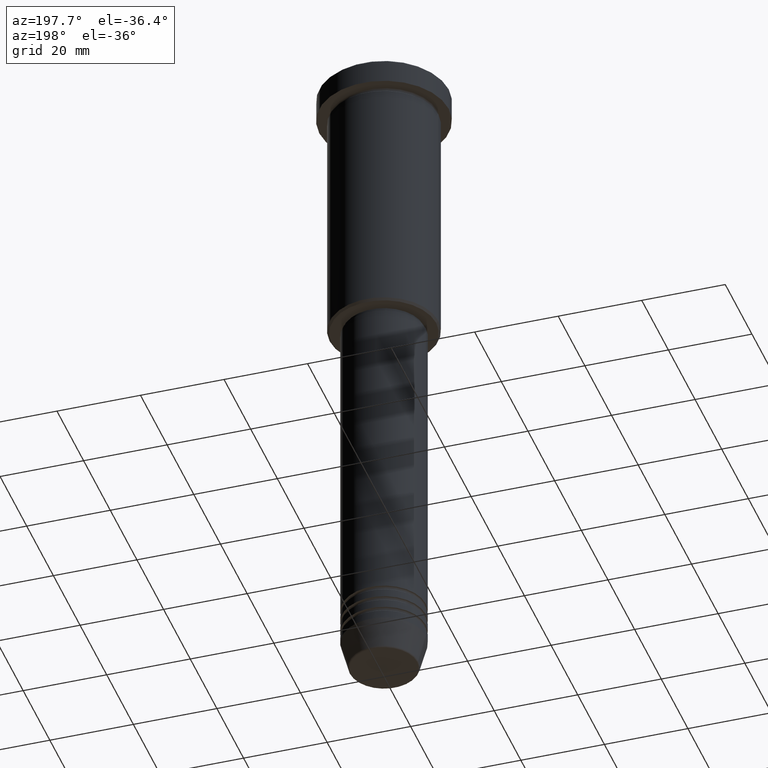
[diagram: clean part render]
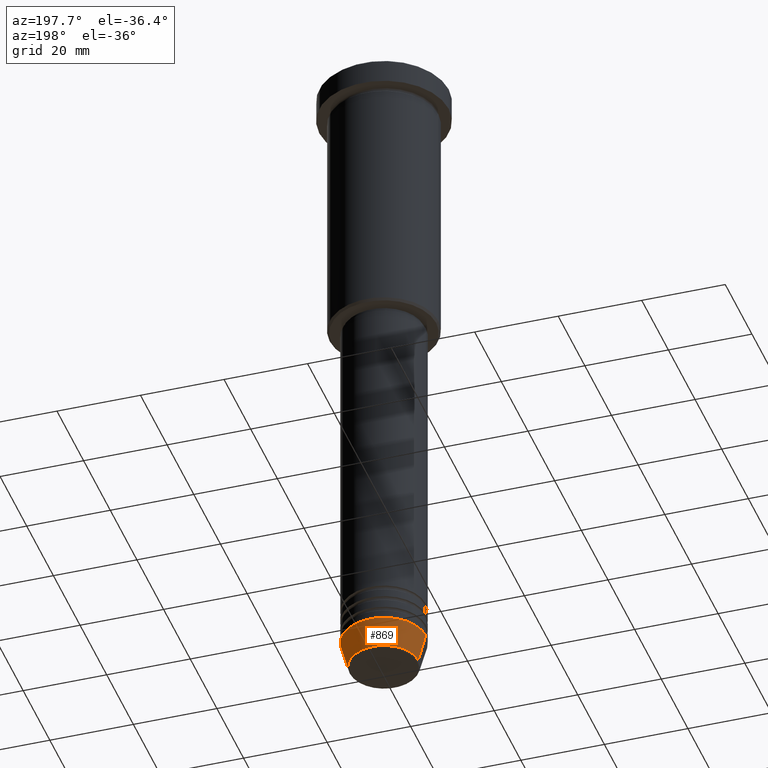
[diagram: same view with one face highlighted and labeled with its STEP entity id]
A machine part, auxiliary view. The second image highlights one B-rep face of the part: STEP entity #869.
In plain terms, the highlighted conical surface has half-angle 15 deg.
Its self-contained STEP definition (entity closure, byte-faithful):
#62 = DIRECTION ( 'NONE',  ( 1.000000000000000000, 0.000000000000000000, 0.000000000000000000 ) ) ;
#86 = VECTOR ( 'NONE', #212, 1000.000000000000000 ) ;
#125 = ORIENTED_EDGE ( 'NONE', *, *, #346, .F. ) ;
#196 = LINE ( 'NONE', #301, #86 ) ;
#212 = DIRECTION ( 'NONE',  ( -0.2588190451025213501, 3.169619151431772337E-17, 0.9659258262890680902 ) ) ;
#222 = EDGE_CURVE ( 'NONE', #658, #597, #196, .T. ) ;
#255 = EDGE_CURVE ( 'NONE', #537, #597, #704, .T. ) ;
#301 = CARTESIAN_POINT ( 'NONE',  ( -10.00000000000000000, 1.224646799147353256E-15, -154.0000000000000000 ) ) ;
#304 = CARTESIAN_POINT ( 'NONE',  ( 8.223655072137198374, 0.000000000000000000, -160.6294095225512137 ) ) ;
#346 = EDGE_CURVE ( 'NONE', #1089, #537, #701, .T. ) ;
#369 = CARTESIAN_POINT ( 'NONE',  ( 10.00000000000000000, 0.000000000000000000, -154.0000000000000000 ) ) ;
#435 = CARTESIAN_POINT ( 'NONE',  ( 10.00000000000000000, 0.000000000000000000, -154.0000000000000000 ) ) ;
#469 = CIRCLE ( 'NONE', #876, 8.223655072137198374 ) ;
#505 = VECTOR ( 'NONE', #705, 1000.000000000000000 ) ;
#535 = EDGE_LOOP ( 'NONE', ( #846, #1159, #627, #125 ) ) ;
#537 = VERTEX_POINT ( 'NONE', #369 ) ;
#548 = CONICAL_SURFACE ( 'NONE', #891, 10.00000000000000000, 0.2617993877991500740 ) ;
#597 = VERTEX_POINT ( 'NONE', #1034 ) ;
#627 = ORIENTED_EDGE ( 'NONE', *, *, #255, .F. ) ;
#641 = CARTESIAN_POINT ( 'NONE',  ( 0.000000000000000000, 0.000000000000000000, -154.0000000000000000 ) ) ;
#643 = AXIS2_PLACEMENT_3D ( 'NONE', #641, #1007, #1110 ) ;
#646 = DIRECTION ( 'NONE',  ( -0.000000000000000000, -0.000000000000000000, 1.000000000000000000 ) ) ;
#658 = VERTEX_POINT ( 'NONE', #1050 ) ;
#701 = LINE ( 'NONE', #435, #505 ) ;
#704 = CIRCLE ( 'NONE', #643, 10.00000000000000000 ) ;
#705 = DIRECTION ( 'NONE',  ( 0.2588190451025213501, 0.000000000000000000, 0.9659258262890680902 ) ) ;
#720 = DIRECTION ( 'NONE',  ( 1.000000000000000000, 0.000000000000000000, 0.000000000000000000 ) ) ;
#729 = CARTESIAN_POINT ( 'NONE',  ( 0.000000000000000000, 0.000000000000000000, -154.0000000000000000 ) ) ;
#817 = FACE_OUTER_BOUND ( 'NONE', #535, .T. ) ;
#846 = ORIENTED_EDGE ( 'NONE', *, *, #1115, .T. ) ;
#869 = ADVANCED_FACE ( 'NONE', ( #817 ), #548, .T. ) ;
#876 = AXIS2_PLACEMENT_3D ( 'NONE', #978, #1053, #62 ) ;
#891 = AXIS2_PLACEMENT_3D ( 'NONE', #729, #646, #720 ) ;
#978 = CARTESIAN_POINT ( 'NONE',  ( 0.000000000000000000, 0.000000000000000000, -160.6294095225512137 ) ) ;
#1007 = DIRECTION ( 'NONE',  ( -0.000000000000000000, -0.000000000000000000, 1.000000000000000000 ) ) ;
#1034 = CARTESIAN_POINT ( 'NONE',  ( -10.00000000000000000, 1.224646799147353256E-15, -154.0000000000000000 ) ) ;
#1050 = CARTESIAN_POINT ( 'NONE',  ( -8.223655072137198374, 1.115877042642912448E-15, -160.6294095225512137 ) ) ;
#1053 = DIRECTION ( 'NONE',  ( -0.000000000000000000, -0.000000000000000000, 1.000000000000000000 ) ) ;
#1089 = VERTEX_POINT ( 'NONE', #304 ) ;
#1110 = DIRECTION ( 'NONE',  ( 1.000000000000000000, 0.000000000000000000, 0.000000000000000000 ) ) ;
#1115 = EDGE_CURVE ( 'NONE', #1089, #658, #469, .T. ) ;
#1159 = ORIENTED_EDGE ( 'NONE', *, *, #222, .T. ) ;